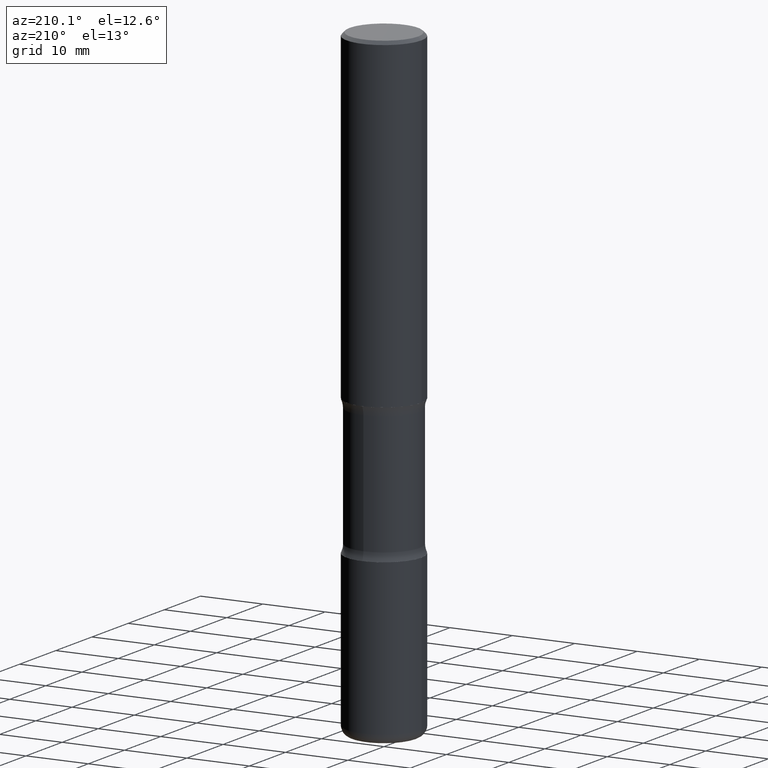
[diagram: clean part render]
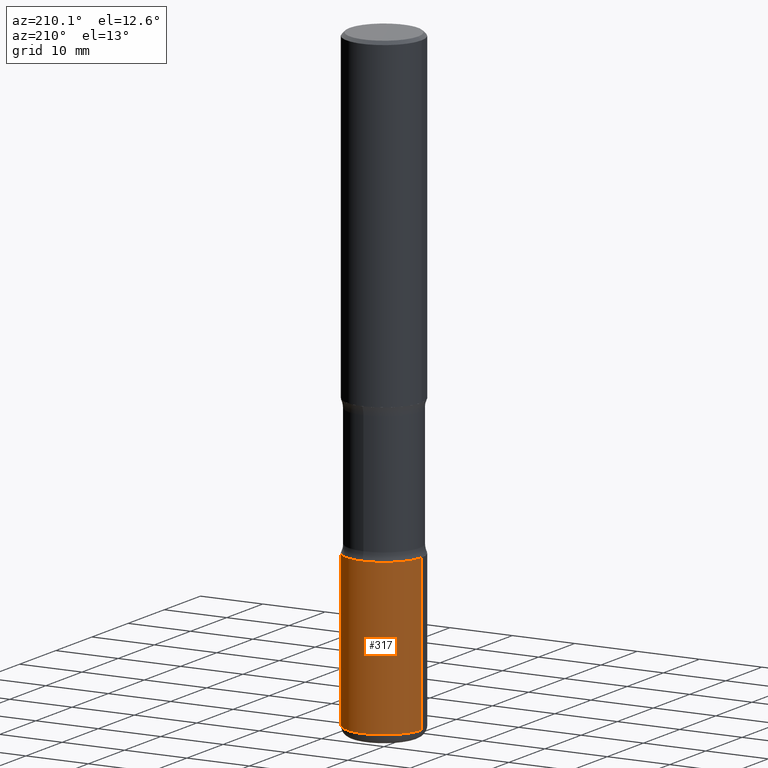
[diagram: same view with one face highlighted and labeled with its STEP entity id]
A machine part, auxiliary view. The second image highlights one B-rep face of the part: STEP entity #317.
In plain terms, the highlighted cylindrical surface (partial cylindrical patch) has radius 5.9995 mm, axis along (-0, 0, 1).
Its self-contained STEP definition (entity closure, byte-faithful):
#2 = CARTESIAN_POINT ( 'NONE',  ( 7.124628819939777829E-29, -1.017208173258562247E-14, -2.913400000000000212 ) ) ;
#40 = EDGE_CURVE ( 'NONE', #238, #203, #289, .T. ) ;
#47 = DIRECTION ( 'NONE',  ( 1.000000000000000000, -6.982962677686269077E-15, 0.000000000000000000 ) ) ;
#60 = VECTOR ( 'NONE', #499, 39.37007874015748143 ) ;
#94 = DIRECTION ( 'NONE',  ( -2.445468806185136597E-29, 3.491481338843145583E-15, 1.000000000000000000 ) ) ;
#108 = CIRCLE ( 'NONE', #129, 0.2362000000000002153 ) ;
#119 = CIRCLE ( 'NONE', #131, 0.2362000000000001321 ) ;
#129 = AXIS2_PLACEMENT_3D ( 'NONE', #198, #501, #455 ) ;
#131 = AXIS2_PLACEMENT_3D ( 'NONE', #2, #438, #47 ) ;
#140 = ORIENTED_EDGE ( 'NONE', *, *, #502, .T. ) ;
#154 = VERTEX_POINT ( 'NONE', #295 ) ;
#198 = CARTESIAN_POINT ( 'NONE',  ( 9.483283483505337853E-29, -1.353961548389983144E-14, -3.877899999999999014 ) ) ;
#203 = VERTEX_POINT ( 'NONE', #417 ) ;
#221 = CARTESIAN_POINT ( 'NONE',  ( -0.2362000000000001598, 1.678301941865357775E-15, -1.161852468318209598E-29 ) ) ;
#238 = VERTEX_POINT ( 'NONE', #375 ) ;
#257 = AXIS2_PLACEMENT_3D ( 'NONE', #482, #94, #261 ) ;
#261 = DIRECTION ( 'NONE',  ( 1.000000000000000000, -6.982962677686266711E-15, 4.876176775795936353E-29 ) ) ;
#276 = VECTOR ( 'NONE', #385, 39.37007874015748143 ) ;
#289 = LINE ( 'NONE', #296, #60 ) ;
#292 = EDGE_CURVE ( 'NONE', #203, #384, #119, .T. ) ;
#295 = CARTESIAN_POINT ( 'NONE',  ( -0.2362000000000000766, -1.186131354203447347E-14, -3.877899999999999014 ) ) ;
#296 = CARTESIAN_POINT ( 'NONE',  ( 0.2362000000000001598, -1.649375784469497314E-15, 1.151752954443000929E-29 ) ) ;
#306 = EDGE_CURVE ( 'NONE', #154, #384, #388, .T. ) ;
#317 = ADVANCED_FACE ( 'NONE', ( #390 ), #357, .T. ) ;
#353 = CARTESIAN_POINT ( 'NONE',  ( -0.2362000000000001321, -1.017754666637736977E-14, -2.913400000000000212 ) ) ;
#357 = CYLINDRICAL_SURFACE ( 'NONE', #257, 0.2362000000000001598 ) ;
#359 = ORIENTED_EDGE ( 'NONE', *, *, #292, .F. ) ;
#375 = CARTESIAN_POINT ( 'NONE',  ( 0.2362000000000000766, -1.518899126836932954E-14, -3.877899999999999014 ) ) ;
#379 = ORIENTED_EDGE ( 'NONE', *, *, #306, .T. ) ;
#384 = VERTEX_POINT ( 'NONE', #353 ) ;
#385 = DIRECTION ( 'NONE',  ( -2.445468806185136877E-29, 3.491481338843145188E-15, 1.000000000000000000 ) ) ;
#388 = LINE ( 'NONE', #221, #276 ) ;
#390 = FACE_OUTER_BOUND ( 'NONE', #396, .T. ) ;
#396 = EDGE_LOOP ( 'NONE', ( #140, #379, #359, #445 ) ) ;
#417 = CARTESIAN_POINT ( 'NONE',  ( 0.2362000000000001321, -1.182145751705511899E-14, -2.913400000000000212 ) ) ;
#438 = DIRECTION ( 'NONE',  ( -2.445468806185136597E-29, 3.491481338843145583E-15, 1.000000000000000000 ) ) ;
#445 = ORIENTED_EDGE ( 'NONE', *, *, #40, .F. ) ;
#455 = DIRECTION ( 'NONE',  ( 1.000000000000000000, -6.982962677686266711E-15, 0.000000000000000000 ) ) ;
#482 = CARTESIAN_POINT ( 'NONE',  ( 0.000000000000000000, 0.000000000000000000, 0.000000000000000000 ) ) ;
#499 = DIRECTION ( 'NONE',  ( -2.445468806185136877E-29, 3.491481338843145188E-15, 1.000000000000000000 ) ) ;
#501 = DIRECTION ( 'NONE',  ( -2.445468806185136597E-29, 3.491481338843145583E-15, 1.000000000000000000 ) ) ;
#502 = EDGE_CURVE ( 'NONE', #238, #154, #108, .T. ) ;